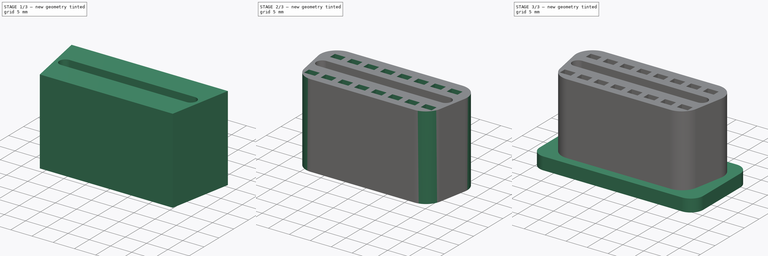
[diagram: build sequence overview — one tinted view per stage of 3, left to right]
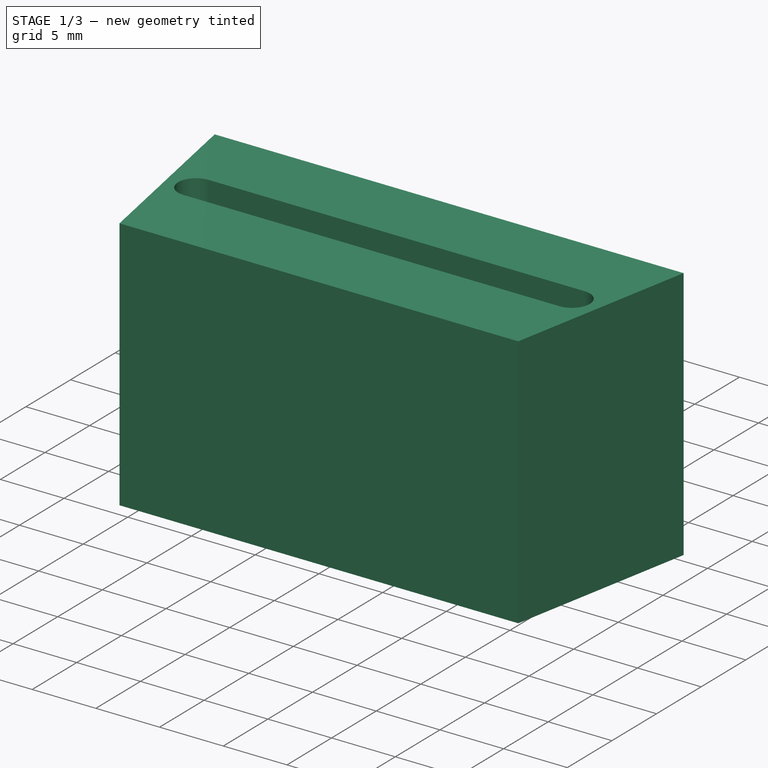
[diagram: stage 1 of 3 — iso view after this stage's code; geometry added in this stage tinted green]
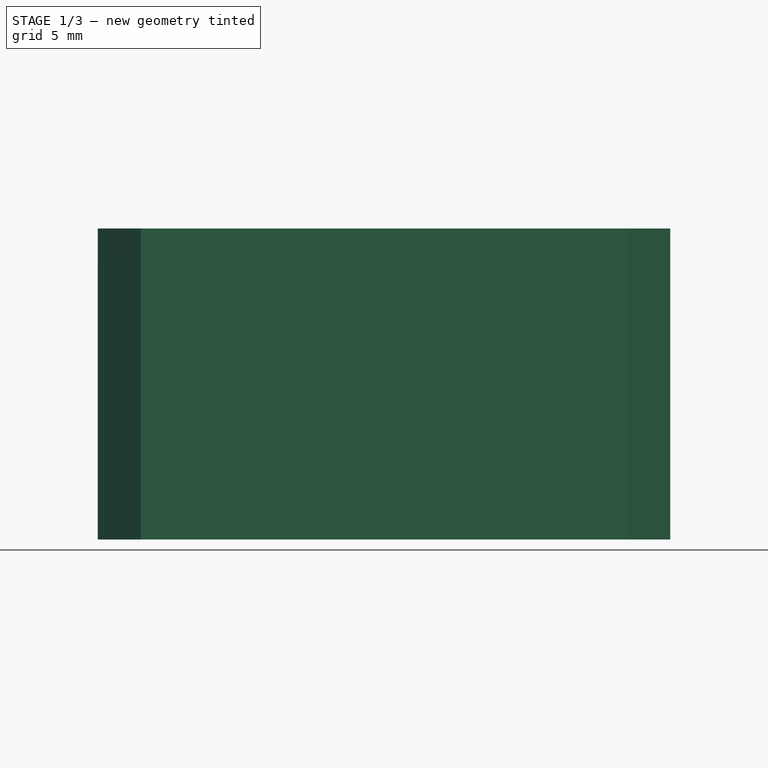
[diagram: stage 1 of 3 — front view after this stage's code; geometry added in this stage tinted green]
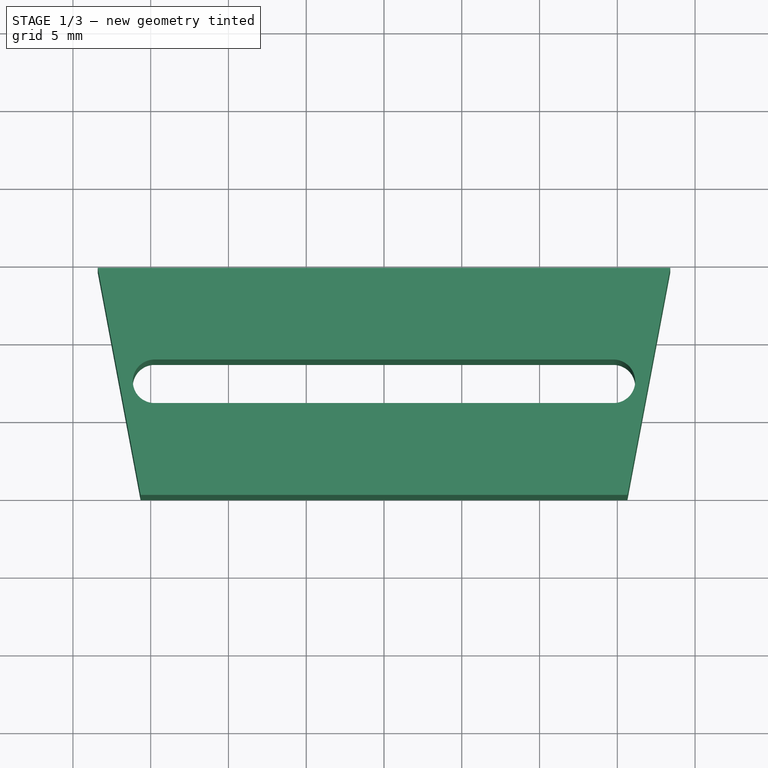
[diagram: stage 1 of 3 — top view after this stage's code; geometry added in this stage tinted green]
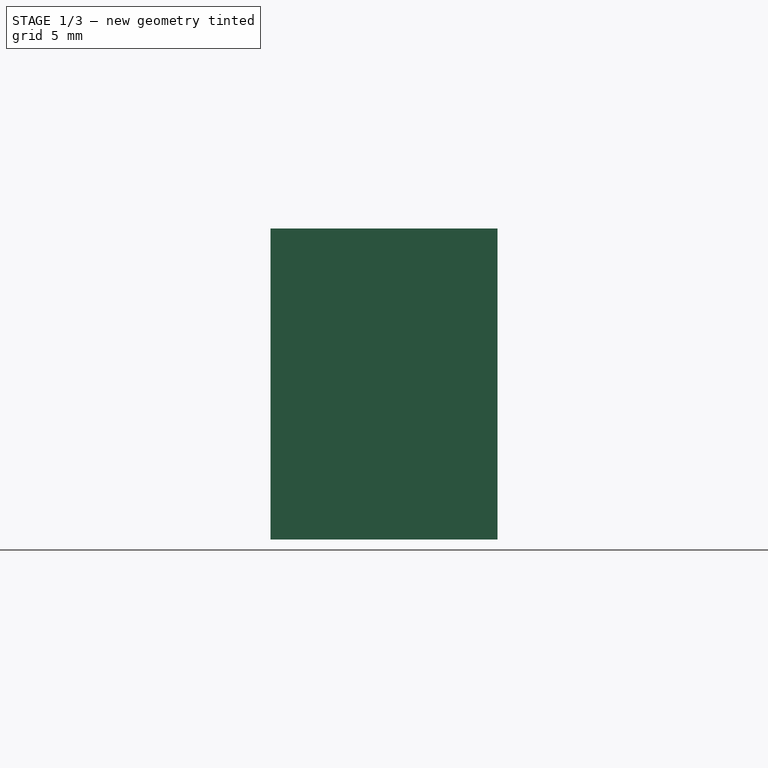
[diagram: stage 1 of 3 — right view after this stage's code; geometry added in this stage tinted green]
FCSTD DOCUMENT  (FreeCAD 0.20R29410 (Git))
Label: obd_zenski
License: All rights reserved
LicenseURL: http://en.wikipedia.org/wiki/All_rights_reserved
objects: Sketcher::SketchObject×4, PartDesign::Pad×2, PartDesign::Pocket×2, PartDesign::Fillet×2, PartDesign::Body×1
note: 17 computed .brp shape members not serialized (recipe doc carries the construction recipe); baked Part::Feature solids carry a one-line shape summary decoded from their .brp

FEATURE [Sketcher::SketchObject] Sketch
  FullyConstrained = true
  MapMode = 5
  Support = -> [XY_Plane]
  sketch-geometry (7):
    g0: LineSegment StartX=-18.4 StartY=14.6 StartZ=0 EndX=18.4 EndY=14.6 EndZ=0
    g1: LineSegment StartX=18.4 StartY=14.6 StartZ=0 EndX=15.65 EndY=0 EndZ=0
    g2: LineSegment StartX=15.65 StartY=0 StartZ=0 EndX=-15.65 EndY=0 EndZ=0
    g3: LineSegment StartX=-15.65 StartY=0 StartZ=0 EndX=-18.4 EndY=14.6 EndZ=0
    g4: GeomPoint X=0 Y=14.6 Z=0
    g5: GeomPoint X=0 Y=0 Z=0
    g6: LineSegment StartX=0 StartY=14.6 StartZ=0 EndX=0 EndY=0 EndZ=0
  constraints (15):
    c: Horizontal(g0)
    c: Coincident(g0,g1)
    c: Coincident(g1,g2)
    c: Horizontal(g2)
    c: Coincident(g2,g3)
    c: Coincident(g3,g0)
    c: DistanceY(g1,g0) = 14.6
    c: DistanceX(g0,g0) = 36.8
    c: DistanceX(g2,g2) = 31.3
    c: Symmetric(g2,g1,g5)
    c: Symmetric(g0,g0,g4)
    c: Coincident(g6,g4)
    c: Coincident(g6,g5)
    c: Vertical(g6)
    c: Coincident(g5,g-1)
FEATURE [PartDesign::Pad] Pad
  Direction = (0,0,1)
  Length = 20
  Length2 = 10
  Profile = -> Sketch
  ReferenceAxis = -> Sketch [N_Axis]
  Type = 0
FEATURE [Sketcher::SketchObject] Sketch001
  FullyConstrained = true
  MapMode = 5
  Placement = pos=(0,0,0) rot=(1,0,0;3.14159rad)
  Support = -> [Pad]
  sketch-geometry (4):
    g0: ArcOfCircle CenterX=-14.75 CenterY=-7.3 CenterZ=0 NormalX=0 NormalY=0 NormalZ=1 AngleXU=0 Radius=1.4 StartAngle=1.5708 EndAngle=4.71239
    g1: ArcOfCircle CenterX=14.75 CenterY=-7.3 CenterZ=0 NormalX=0 NormalY=0 NormalZ=1 AngleXU=0 Radius=1.4 StartAngle=4.71239 EndAngle=7.85398
    g2: LineSegment StartX=-14.75 StartY=-8.7 StartZ=0 EndX=14.75 EndY=-8.7 EndZ=0
    g3: LineSegment StartX=14.75 StartY=-5.9 StartZ=0 EndX=-14.75 EndY=-5.9 EndZ=0
  constraints (9):
    c: Tangent(g0,g2) = -1.5708
    c: Tangent(g2,g1) = -1.5708
    c: Tangent(g1,g3) = -1.5708
    c: Tangent(g3,g0) = -1.5708
    c: Equal(g0,g1)
    c: Diameter(g0) = 2.8
    c: DistanceX(g0,g1) = 29.5
    c: Symmetric(g0,g1,g-2)
    c: DistanceY(g1,g-1) = 7.3
FEATURE [PartDesign::Pocket] Pocket
  BaseFeature = -> Pad
  Direction = (0,0,1)
  Length = 5
  Length2 = 5
  Profile = -> Sketch001
  ReferenceAxis = -> Sketch001 [N_Axis]
  Type = 1
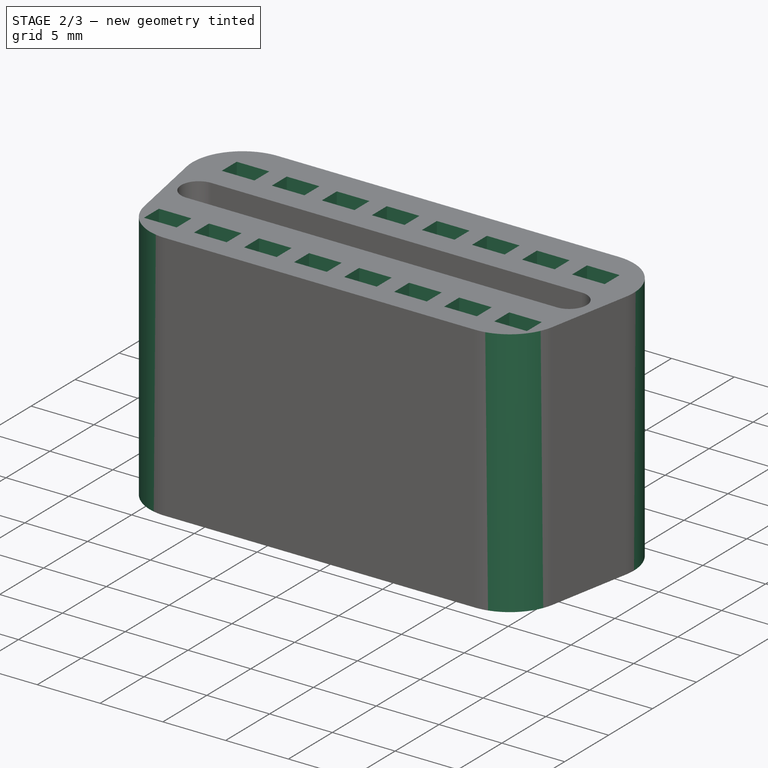
[diagram: stage 2 of 3 — iso view after this stage's code; geometry added in this stage tinted green]
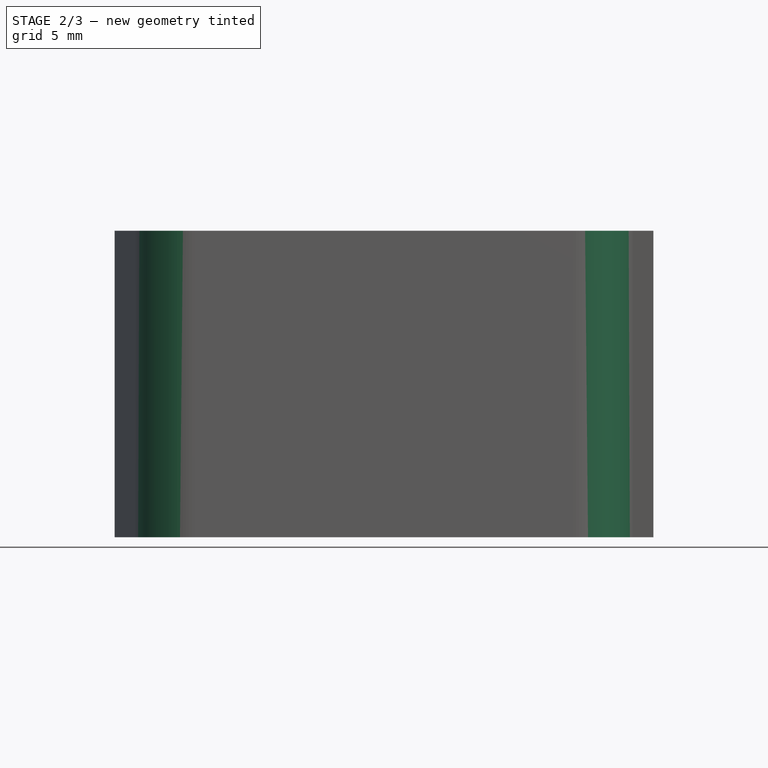
[diagram: stage 2 of 3 — front view after this stage's code; geometry added in this stage tinted green]
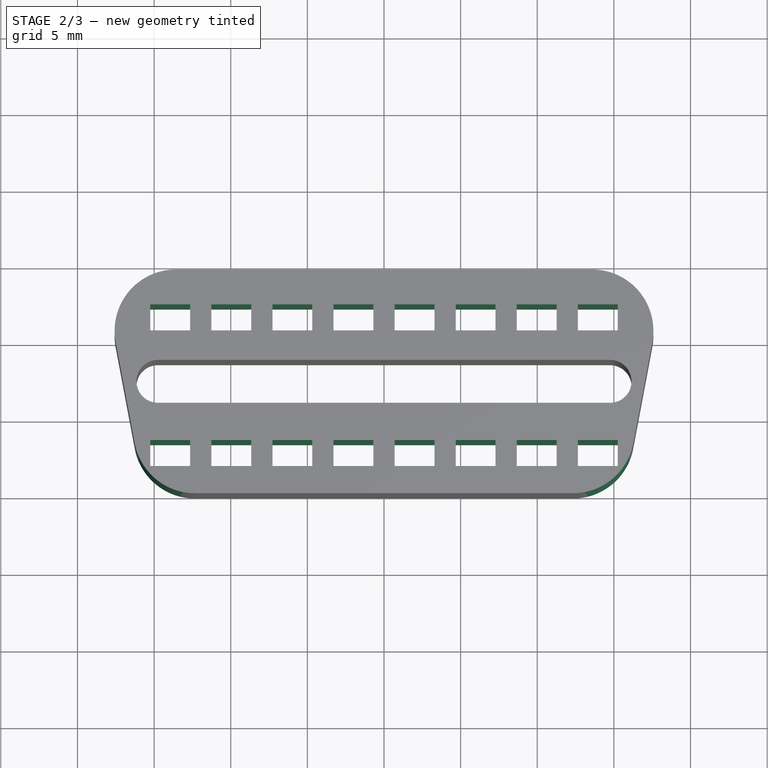
[diagram: stage 2 of 3 — top view after this stage's code; geometry added in this stage tinted green]
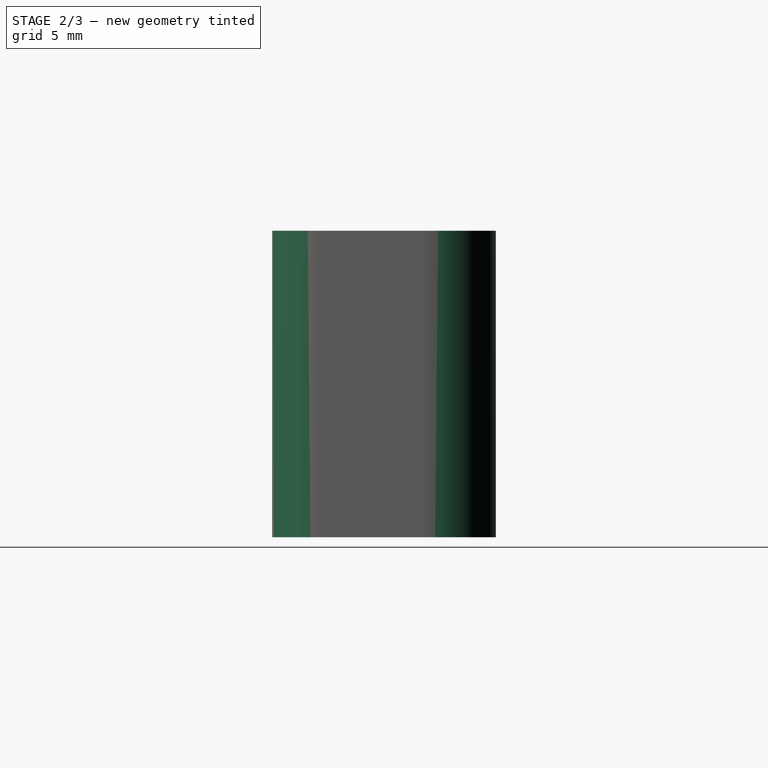
[diagram: stage 2 of 3 — right view after this stage's code; geometry added in this stage tinted green]
FEATURE [Sketcher::SketchObject] Sketch002
  ExternalGeometry = -> [Pocket]
  FullyConstrained = true
  MapMode = 5
  Placement = pos=(0,0,0) rot=(1,0,0;3.14159rad)
  Support = -> [Pocket]
  sketch-geometry (78):
    g0: LineSegment StartX=-15.25 StartY=-1.775 StartZ=0 EndX=-12.65 EndY=-1.775 EndZ=0
    g1: LineSegment StartX=-12.65 StartY=-1.775 StartZ=0 EndX=-12.65 EndY=-3.475 EndZ=0
    g2: LineSegment StartX=-12.65 StartY=-3.475 StartZ=0 EndX=-15.25 EndY=-3.475 EndZ=0
    g3: LineSegment StartX=-15.25 StartY=-3.475 StartZ=0 EndX=-15.25 EndY=-1.775 EndZ=0
    g4: LineSegment StartX=-11.2643 StartY=-1.775 StartZ=0 EndX=-8.66429 EndY=-1.775 EndZ=0
    g5: LineSegment StartX=-8.66429 StartY=-1.775 StartZ=0 EndX=-8.66429 EndY=-3.475 EndZ=0
    g6: LineSegment StartX=-8.66429 StartY=-3.475 StartZ=0 EndX=-11.2643 EndY=-3.475 EndZ=0
    g7: LineSegment StartX=-11.2643 StartY=-3.475 StartZ=0 EndX=-11.2643 EndY=-1.775 EndZ=0
    g8: LineSegment StartX=-7.27857 StartY=-1.775 StartZ=0 EndX=-4.67857 EndY=-1.775 EndZ=0
    g9: LineSegment StartX=-4.67857 StartY=-1.775 StartZ=0 EndX=-4.67857 EndY=-3.475 EndZ=0
    g10: LineSegment StartX=-4.67857 StartY=-3.475 StartZ=0 EndX=-7.27857 EndY=-3.475 EndZ=0
    g11: LineSegment StartX=-7.27857 StartY=-3.475 StartZ=0 EndX=-7.27857 EndY=-1.775 EndZ=0
    g12: LineSegment StartX=-3.29286 StartY=-1.775 StartZ=0 EndX=-0.692857 EndY=-1.775 EndZ=0
    g13: LineSegment StartX=-0.692857 StartY=-1.775 StartZ=0 EndX=-0.692857 EndY=-3.475 EndZ=0
    g14: LineSegment StartX=-0.692857 StartY=-3.475 StartZ=0 EndX=-3.29286 EndY=-3.475 EndZ=0
    g15: LineSegment StartX=-3.29286 StartY=-3.475 StartZ=0 EndX=-3.29286 EndY=-1.775 EndZ=0
    g16: LineSegment StartX=0.692857 StartY=-1.775 StartZ=0 EndX=3.29286 EndY=-1.775 EndZ=0
    g17: LineSegment StartX=3.29286 StartY=-1.775 StartZ=0 EndX=3.29286 EndY=-3.475 EndZ=0
    g18: LineSegment StartX=3.29286 StartY=-3.475 StartZ=0 EndX=0.692857 EndY=-3.475 EndZ=0
    g19: LineSegment StartX=0.692857 StartY=-3.475 StartZ=0 EndX=0.692857 EndY=-1.775 EndZ=0
    g20: LineSegment StartX=4.67857 StartY=-1.775 StartZ=0 EndX=7.27857 EndY=-1.775 EndZ=0
    g21: LineSegment StartX=7.27857 StartY=-1.775 StartZ=0 EndX=7.27857 EndY=-3.475 EndZ=0
    g22: LineSegment StartX=7.27857 StartY=-3.475 StartZ=0 EndX=4.67857 EndY=-3.475 EndZ=0
    g23: LineSegment StartX=4.67857 StartY=-3.475 StartZ=0 EndX=4.67857 EndY=-1.775 EndZ=0
    g24: LineSegment StartX=11.2643 StartY=-1.775 StartZ=0 EndX=11.2643 EndY=-3.475 EndZ=0
    g25: LineSegment StartX=11.2643 StartY=-3.475 StartZ=0 EndX=8.66429 EndY=-3.475 EndZ=0
    g26: LineSegment StartX=8.66429 StartY=-3.475 StartZ=0 EndX=8.66429 EndY=-1.775 EndZ=0
    g27: LineSegment StartX=15.25 StartY=-1.775 StartZ=0 EndX=15.25 EndY=-3.475 EndZ=0
    g28: LineSegment StartX=15.25 StartY=-3.475 StartZ=0 EndX=12.65 EndY=-3.475 EndZ=0
    g29: LineSegment StartX=12.65 StartY=-3.475 StartZ=0 EndX=12.65 EndY=-1.775 EndZ=0
    g30: LineSegment StartX=-15.25 StartY=-10.625 StartZ=0 EndX=-12.65 EndY=-10.625 EndZ=0
    g31: LineSegment StartX=-12.65 StartY=-10.625 StartZ=0 EndX=-12.65 EndY=-12.325 EndZ=0
    g32: LineSegment StartX=-12.65 StartY=-12.325 StartZ=0 EndX=-15.25 EndY=-12.325 EndZ=0
    g33: LineSegment StartX=-15.25 StartY=-12.325 StartZ=0 EndX=-15.25 EndY=-10.625 EndZ=0
    g34: LineSegment StartX=-11.2643 StartY=-10.625 StartZ=0 EndX=-8.66429 EndY=-10.625 EndZ=0
    g35: LineSegment StartX=-8.66429 StartY=-10.625 StartZ=0 EndX=-8.66429 EndY=-12.325 EndZ=0
    g36: LineSegment StartX=-8.66429 StartY=-12.325 StartZ=0 EndX=-11.2643 EndY=-12.325 EndZ=0
    g37: LineSegment StartX=-11.2643 StartY=-12.325 StartZ=0 EndX=-11.2643 EndY=-10.625 EndZ=0
    g38: LineSegment StartX=-7.27857 StartY=-10.625 StartZ=0 EndX=-4.67857 EndY=-10.625 EndZ=0
    g39: LineSegment StartX=-4.67857 StartY=-10.625 StartZ=0 EndX=-4.67857 EndY=-12.325 EndZ=0
    g40: LineSegment StartX=-4.67857 StartY=-12.325 StartZ=0 EndX=-7.27857 EndY=-12.325 EndZ=0
    g41: LineSegment StartX=-7.27857 StartY=-12.325 StartZ=0 EndX=-7.27857 EndY=-10.625 EndZ=0
    g42: LineSegment StartX=-3.29286 StartY=-10.625 StartZ=0 EndX=-0.692857 EndY=-10.625 EndZ=0
    g43: LineSegment StartX=-0.692857 StartY=-10.625 StartZ=0 EndX=-0.692857 EndY=-12.325 EndZ=0
    g44: LineSegment StartX=-0.692857 StartY=-12.325 StartZ=0 EndX=-3.29286 EndY=-12.325 EndZ=0
    g45: LineSegment StartX=-3.29286 StartY=-12.325 StartZ=0 EndX=-3.29286 EndY=-10.625 EndZ=0
    g46: LineSegment StartX=0.692857 StartY=-10.625 StartZ=0 EndX=3.29286 EndY=-10.625 EndZ=0
    g47: LineSegment StartX=3.29286 StartY=-10.625 StartZ=0 EndX=3.29286 EndY=-12.325 EndZ=0
    g48: LineSegment StartX=3.29286 StartY=-12.325 StartZ=0 EndX=0.692857 EndY=-12.325 EndZ=0
    g49: LineSegment StartX=0.692857 StartY=-12.325 StartZ=0 EndX=0.692857 EndY=-10.625 EndZ=0
    g50: LineSegment StartX=4.67857 StartY=-10.625 StartZ=0 EndX=7.27857 EndY=-10.625 EndZ=0
    g51: LineSegment StartX=7.27857 StartY=-10.625 StartZ=0 EndX=7.27857 EndY=-12.325 EndZ=0
    g52: LineSegment StartX=7.27857 StartY=-12.325 StartZ=0 EndX=4.67857 EndY=-12.325 EndZ=0
    g53: LineSegment StartX=4.67857 StartY=-12.325 StartZ=0 EndX=4.67857 EndY=-10.625 EndZ=0
    g54: LineSegment StartX=8.66429 StartY=-10.625 StartZ=0 EndX=11.2643 EndY=-10.625 EndZ=0
    g55: LineSegment StartX=11.2643 StartY=-10.625 StartZ=0 EndX=11.2643 EndY=-12.325 EndZ=0
    g56: LineSegment StartX=11.2643 StartY=-12.325 StartZ=0 EndX=8.66429 EndY=-12.325 EndZ=0
    g57: LineSegment StartX=8.66429 StartY=-12.325 StartZ=0 EndX=8.66429 EndY=-10.625 EndZ=0
    g58: LineSegment StartX=12.65 StartY=-10.625 StartZ=0 EndX=15.25 EndY=-10.625 EndZ=0
    g59: LineSegment StartX=15.25 StartY=-10.625 StartZ=0 EndX=15.25 EndY=-12.325 EndZ=0
    g60: LineSegment StartX=15.25 StartY=-12.325 StartZ=0 EndX=12.65 EndY=-12.325 EndZ=0
    g61: LineSegment StartX=12.65 StartY=-12.325 StartZ=0 EndX=12.65 EndY=-10.625 EndZ=0
    g62: LineSegment StartX=-12.65 StartY=-1.775 StartZ=0 EndX=-11.2643 EndY=-1.775 EndZ=0
    g63: LineSegment StartX=-8.66429 StartY=-1.775 StartZ=0 EndX=-7.27857 EndY=-1.775 EndZ=0
    g64: LineSegment StartX=-4.67857 StartY=-1.775 StartZ=0 EndX=-3.29286 EndY=-1.775 EndZ=0
    g65: LineSegment StartX=-0.692857 StartY=-1.775 StartZ=0 EndX=0.692857 EndY=-1.775 EndZ=0
    g66: LineSegment StartX=3.29286 StartY=-1.775 StartZ=0 EndX=4.67857 EndY=-1.775 EndZ=0
    g67: LineSegment StartX=7.27857 StartY=-1.775 StartZ=0 EndX=8.66429 EndY=-1.775 EndZ=0
    g68: LineSegment StartX=12.65 StartY=-1.775 StartZ=0 EndX=15.25 EndY=-1.775 EndZ=0
    g69: LineSegment StartX=8.66429 StartY=-1.775 StartZ=0 EndX=11.2643 EndY=-1.775 EndZ=0
    g70: LineSegment StartX=11.2643 StartY=-1.775 StartZ=0 EndX=12.65 EndY=-1.775 EndZ=0
    g71: LineSegment StartX=-12.65 StartY=-10.625 StartZ=0 EndX=-11.2643 EndY=-10.625 EndZ=0
    g72: LineSegment StartX=-8.66429 StartY=-10.625 StartZ=0 EndX=-7.27857 EndY=-10.625 EndZ=0
    g73: LineSegment StartX=-4.67857 StartY=-10.625 StartZ=0 EndX=-3.29286 EndY=-10.625 EndZ=0
    g74: LineSegment StartX=-0.692857 StartY=-10.625 StartZ=0 EndX=0.692857 EndY=-10.625 EndZ=0
    g75: LineSegment StartX=3.29286 StartY=-10.625 StartZ=0 EndX=4.67857 EndY=-10.625 EndZ=0
    g76: LineSegment StartX=7.27857 StartY=-10.625 StartZ=0 EndX=8.66429 EndY=-10.625 EndZ=0
    g77: LineSegment StartX=11.2643 StartY=-10.625 StartZ=0 EndX=12.65 EndY=-10.625 EndZ=0
  constraints (221):
    c: Coincident(g0,g1)
    c: Coincident(g1,g2)
    c: Coincident(g2,g3)
    c: Coincident(g3,g0)
    c: Horizontal(g0)
    c: Horizontal(g2)
    c: Vertical(g1)
    c: Vertical(g3)
    c: Coincident(g4,g5)
    c: Coincident(g5,g6)
    c: Coincident(g6,g7)
    c: Coincident(g7,g4)
    c: Horizontal(g4)
    c: Horizontal(g6)
    c: Vertical(g5)
    c: Vertical(g7)
    c: Coincident(g8,g9)
    c: Coincident(g9,g10)
    c: Coincident(g10,g11)
    c: Coincident(g11,g8)
    c: Horizontal(g8)
    c: Horizontal(g10)
    c: Vertical(g9)
    c: Vertical(g11)
    c: Coincident(g12,g13)
    c: Coincident(g13,g14)
    c: Coincident(g14,g15)
    c: Coincident(g15,g12)
    c: Horizontal(g12)
    c: Horizontal(g14)
    c: Vertical(g13)
    c: Vertical(g15)
    c: Coincident(g16,g17)
    c: Coincident(g17,g18)
    c: Coincident(g18,g19)
    c: Coincident(g19,g16)
    c: Horizontal(g16)
    c: Horizontal(g18)
    c: Vertical(g17)
    c: Vertical(g19)
    c: Coincident(g20,g21)
    c: Coincident(g21,g22)
    c: Coincident(g22,g23)
    c: Coincident(g23,g20)
    c: Horizontal(g20)
    c: Horizontal(g22)
    c: Vertical(g21)
    c: Vertical(g23)
    c: Coincident(g24,g25)
    c: Coincident(g25,g26)
    c: Horizontal(g25)
    c: Vertical(g24)
    c: Vertical(g26)
    c: Coincident(g27,g28)
    c: Coincident(g28,g29)
    c: Horizontal(g28)
    c: Vertical(g27)
    c: Vertical(g29)
    c: Coincident(g30,g31)
    c: Coincident(g31,g32)
    c: Coincident(g32,g33)
    c: Coincident(g33,g30)
    c: Horizontal(g30)
    c: Horizontal(g32)
    c: Vertical(g31)
    c: Vertical(g33)
    c: Coincident(g34,g35)
    c: Coincident(g35,g36)
    c: Coincident(g36,g37)
    c: Coincident(g37,g34)
    c: Horizontal(g34)
    c: Horizontal(g36)
    c: Vertical(g35)
    c: Vertical(g37)
    c: Coincident(g38,g39)
    c: Coincident(g39,g40)
    c: Coincident(g40,g41)
    c: Coincident(g41,g38)
    c: Horizontal(g38)
    c: Horizontal(g40)
    c: Vertical(g39)
    c: Vertical(g41)
    c: Coincident(g42,g43)
    c: Coincident(g43,g44)
    c: Coincident(g44,g45)
    c: Coincident(g45,g42)
    c: Horizontal(g42)
    c: Horizontal(g44)
    c: Vertical(g43)
    c: Vertical(g45)
    c: Coincident(g46,g47)
    c: Coincident(g47,g48)
    c: Coincident(g48,g49)
    c: Coincident(g49,g46)
    c: Horizontal(g46)
    c: Horizontal(g48)
    c: Vertical(g47)
    c: Vertical(g49)
    c: Coincident(g50,g51)
    c: Coincident(g51,g52)
    c: Coincident(g52,g53)
    c: Coincident(g53,g50)
    c: Horizontal(g50)
    c: Horizontal(g52)
    c: Vertical(g51)
    c: Vertical(g53)
    c: Coincident(g54,g55)
    c: Coincident(g55,g56)
    c: Coincident(g56,g57)
    c: Coincident(g57,g54)
    c: Horizontal(g54)
    c: Horizontal(g56)
    c: Vertical(g55)
    c: Vertical(g57)
    c: Coincident(g58,g59)
    c: Coincident(g59,g60)
    c: Coincident(g60,g61)
    c: Coincident(g61,g58)
    c: Horizontal(g58)
    c: Horizontal(g60)
    c: Vertical(g59)
    c: Vertical(g61)
    c: DistanceX(g2,g2) = 2.6
    c: DistanceY(g1,g1) = 1.7
    c: Equal(g1,g5)
    c: Equal(g5,g9)
    c: Equal(g9,g13)
    c: Equal(g13,g17)
    c: Equal(g17,g21)
    c: Equal(g21,g24)
    c: Equal(g24,g27)
    c: Equal(g27,g59)
    c: Equal(g59,g55)
    c: Equal(g55,g51)
    c: Equal(g51,g47)
    c: Equal(g47,g43)
    c: Equal(g43,g39)
    c: Equal(g39,g35)
    c: Equal(g35,g31)
    c: Equal(g2,g6)
    c: Equal(g6,g10)
    c: Equal(g10,g14)
    c: Equal(g14,g18)
    c: Equal(g18,g22)
    c: Equal(g22,g25)
    c: Equal(g25,g28)
    c: Equal(g28,g60)
    c: Equal(g60,g56)
    c: Equal(g56,g52)
    c: Equal(g52,g48)
    c: Equal(g48,g44)
    c: Equal(g44,g40)
    c: Equal(g40,g36)
    c: Equal(g36,g32)
    c: DistanceX(g1,g6) = 1.38571
    c: Coincident(g62,g0)
    c: Coincident(g62,g4)
    c: Horizontal(g62)
    c: Coincident(g63,g4)
    c: Coincident(g63,g8)
    c: Coincident(g64,g8)
    c: Coincident(g64,g12)
    c: Horizontal(g64)
    c: Coincident(g65,g12)
    c: Coincident(g65,g16)
    c: Coincident(g66,g16)
    c: Coincident(g66,g20)
    c: Horizontal(g66)
    c: Coincident(g67,g20)
    c: Horizontal(g67)
    c: Horizontal(g63)
    c: Equal(g62,g63)
    c: Equal(g63,g64)
    c: Equal(g64,g65)
    c: Equal(g65,g66)
    c: Equal(g66,g67)
    c: Horizontal(g65)
    c: Coincident(g68,g29)
    c: Coincident(g68,g27)
    c: Horizontal(g68)
    c: Coincident(g69,g26)
    c: Coincident(g69,g24)
    c: Horizontal(g69)
    c: Coincident(g70,g24)
    c: Coincident(g70,g29)
    c: Horizontal(g70)
    c: Equal(g67,g70)
    c: Coincident(g26,g67)
    c: Coincident(g71,g30)
    c: Coincident(g71,g34)
    c: Horizontal(g71)
    c: Coincident(g72,g34)
    c: Coincident(g72,g38)
    c: Horizontal(g72)
    c: Coincident(g73,g38)
    c: Coincident(g73,g42)
    c: Horizontal(g73)
    c: Coincident(g74,g42)
    c: Coincident(g74,g46)
    c: Coincident(g75,g46)
    c: Coincident(g75,g50)
    c: Horizontal(g75)
    c: Coincident(g76,g50)
    c: Coincident(g76,g54)
    c: Coincident(g77,g54)
    c: Coincident(g77,g58)
    c: Horizontal(g77)
    c: Horizontal(g76)
    c: Equal(g71,g72)
    c: Equal(g72,g73)
    c: Equal(g73,g74)
    c: Equal(g74,g75)
    c: Equal(g75,g76)
    c: Equal(g76,g77)
    c: Equal(g77,g62)
    c: DistanceX(g2,g30) = 0
    c: DistanceY(g30,g2) = 7.15
    c: DistanceY(g-3,g1) = 2.425
    c: DistanceY(g30,g-4) = 1.925
    c: Symmetric(g42,g46,g-2)
    c: DistanceX(g0,g27) = 30.5
FEATURE [PartDesign::Pocket] Pocket001
  BaseFeature = -> Pocket
  Direction = (0,0,1)
  Length = 5
  Length2 = 5
  Profile = -> Sketch002
  ReferenceAxis = -> Sketch002 [N_Axis]
  Type = 1
FEATURE [PartDesign::Fillet] Fillet
  Base = -> Pocket001 [Edge2,Edge8,Edge5,Edge1]
  BaseFeature = -> Pocket001
  Radius = 4
  SupportTransform = false
  UseAllEdges = false
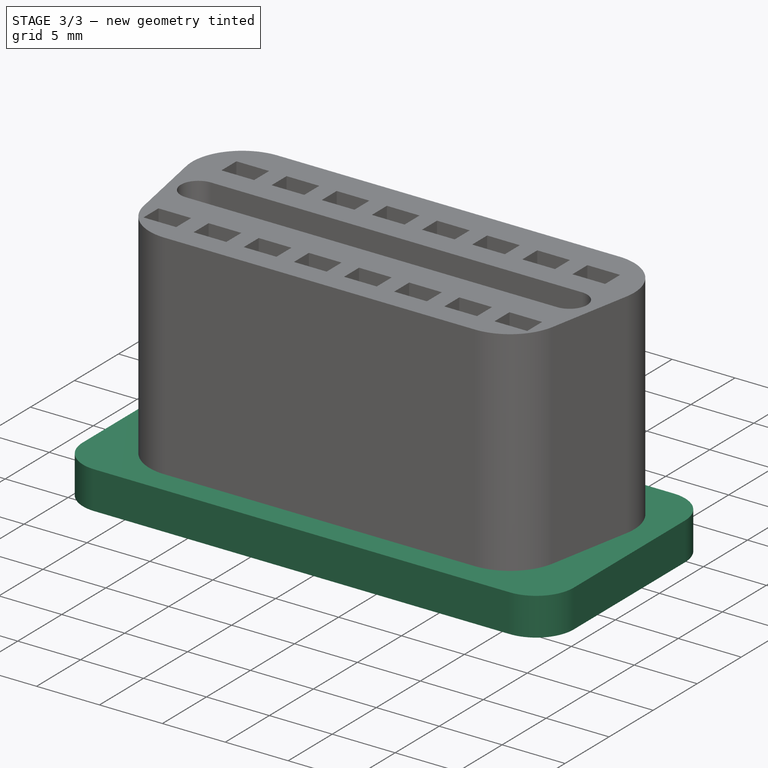
[diagram: stage 3 of 3 — iso view after this stage's code; geometry added in this stage tinted green]
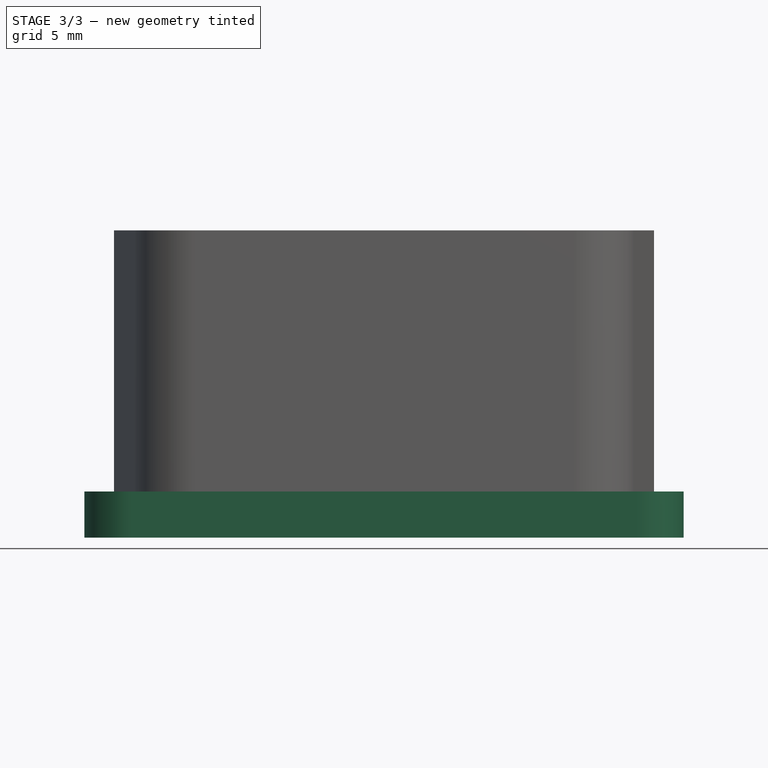
[diagram: stage 3 of 3 — front view after this stage's code; geometry added in this stage tinted green]
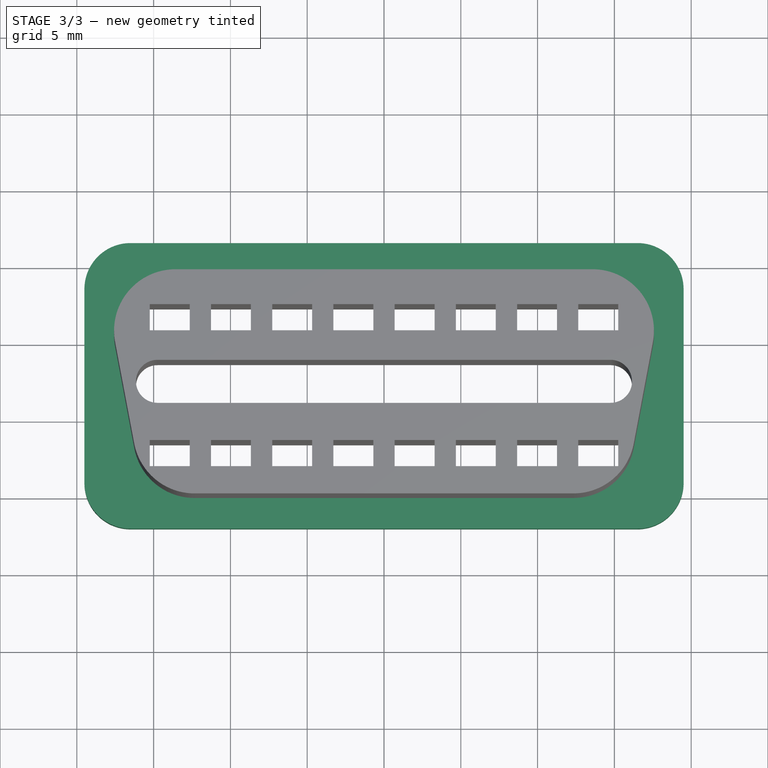
[diagram: stage 3 of 3 — top view after this stage's code; geometry added in this stage tinted green]
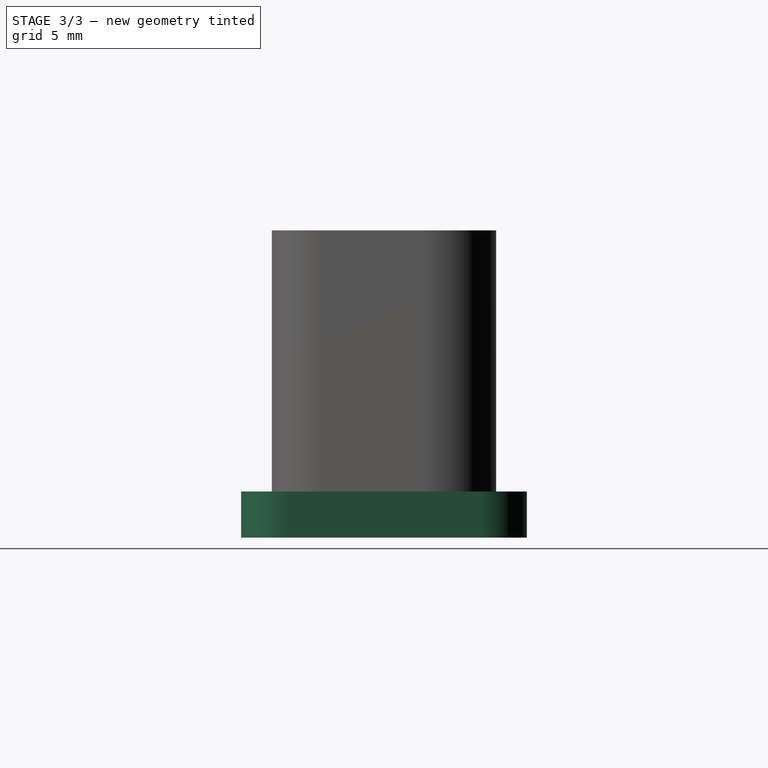
[diagram: stage 3 of 3 — right view after this stage's code; geometry added in this stage tinted green]
FEATURE [Sketcher::SketchObject] Sketch003
  ExternalGeometry = -> [Fillet]
  FullyConstrained = false
  MapMode = 5
  Placement = pos=(0,0,0) rot=(1,0,0;3.14159rad)
  Support = -> [Fillet]
  sketch-geometry (12):
    g0: LineSegment StartX=-19.5071 StartY=2 StartZ=0 EndX=19.5071 EndY=2 EndZ=0
    g1: LineSegment StartX=19.5071 StartY=2 StartZ=0 EndX=19.5071 EndY=-16.6 EndZ=0
    g2: LineSegment StartX=19.5071 StartY=-16.6 StartZ=0 EndX=-19.5071 EndY=-16.6 EndZ=0
    g3: LineSegment StartX=-19.5071 StartY=-16.6 StartZ=0 EndX=-19.5071 EndY=2 EndZ=0
    g4: LineSegment StartX=-12.6777 StartY=-0.35518 StartZ=0 EndX=12.5567 EndY=-0.35518 EndZ=0
    g5: ArcOfCircle CenterX=12.5567 CenterY=-3.81605 CenterZ=0 NormalX=0 NormalY=0 NormalZ=1 AngleXU=0 Radius=3.46087 StartAngle=0.0625969 EndAngle=1.5708
    g6: LineSegment StartX=16.0108 StartY=-3.59955 StartZ=0 EndX=16.9889 EndY=-10.4722 EndZ=0
    g7: ArcOfCircle CenterX=13.86 CenterY=-10.9174 CenterZ=0 NormalX=0 NormalY=0 NormalZ=1 AngleXU=0 Radius=3.1604 StartAngle=4.6901 EndAngle=6.42456
    g8: LineSegment StartX=13.7896 StartY=-14.0771 StartZ=0 EndX=-13.4865 EndY=-14.0771 EndZ=0
    g9: ArcOfCircle CenterX=-13.4865 CenterY=-10.5659 CenterZ=0 NormalX=0 NormalY=0 NormalZ=1 AngleXU=0 Radius=3.51118 StartAngle=2.93828 EndAngle=4.71239
    g10: LineSegment StartX=-16.9254 StartY=-9.85691 StartZ=0 EndX=-15.8686 EndY=-3.03084 EndZ=0
    g11: ArcOfCircle CenterX=-12.7459 CenterY=-3.51429 CenterZ=0 NormalX=0 NormalY=0 NormalZ=1 AngleXU=0 Radius=3.15984 StartAngle=1.5492 EndAngle=2.98799
  constraints (21):
    c: Coincident(g0,g1)
    c: Coincident(g1,g2)
    c: Coincident(g2,g3)
    c: Coincident(g3,g0)
    c: Horizontal(g2)
    c: Vertical(g1)
    c: Vertical(g3)
    c: Symmetric(g0,g0,g-2)
    c: DistanceY(g2,g-3) = 2
    c: DistanceX(g2,g-3) = 2
    c: DistanceY(g-1,g0) = 2
    c: Horizontal(g4)
    c: Tangent(g4,g5) = 1.5708
    c: Coincident(g5,g6)
    c: Tangent(g6,g7) = 1.5708
    c: Coincident(g7,g8)
    c: Horizontal(g8)
    c: Tangent(g8,g9) = 1.5708
    c: Coincident(g9,g10)
    c: Tangent(g10,g11) = 1.5708
    c: Coincident(g11,g4)
FEATURE [PartDesign::Pad] Pad001
  BaseFeature = -> Fillet
  Direction = (0,0,-1)
  Length = 3
  Length2 = 10
  Profile = -> Sketch003
  ReferenceAxis = -> Sketch003 [N_Axis]
  Reversed = true
  Type = 0
FEATURE [PartDesign::Fillet] Fillet001
  Base = -> Pad001 [Edge90,Edge94,Edge89,Edge92]
  BaseFeature = -> Pad001
  Radius = 3
  SupportTransform = false
  UseAllEdges = false
FEATURE [PartDesign::Body] Body
  Group = -> [Sketch,Pad,Sketch001,Pocket,Sketch002,Pocket001,Fillet,Sketch003,Pad001,Fillet001]
  Origin = -> Origin
  Tip = -> Fillet001
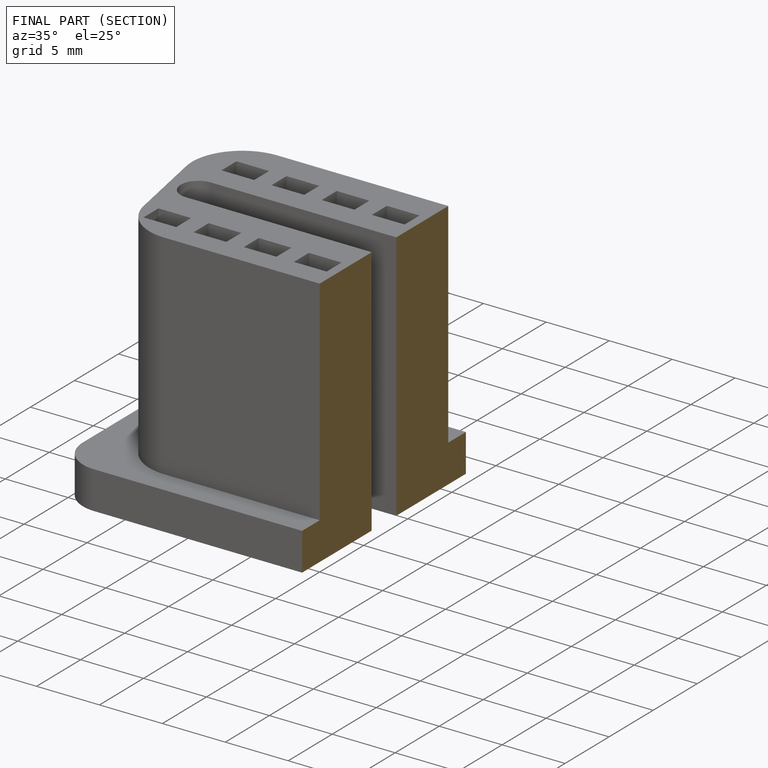
[diagram: finished part — half-section view (interior)]
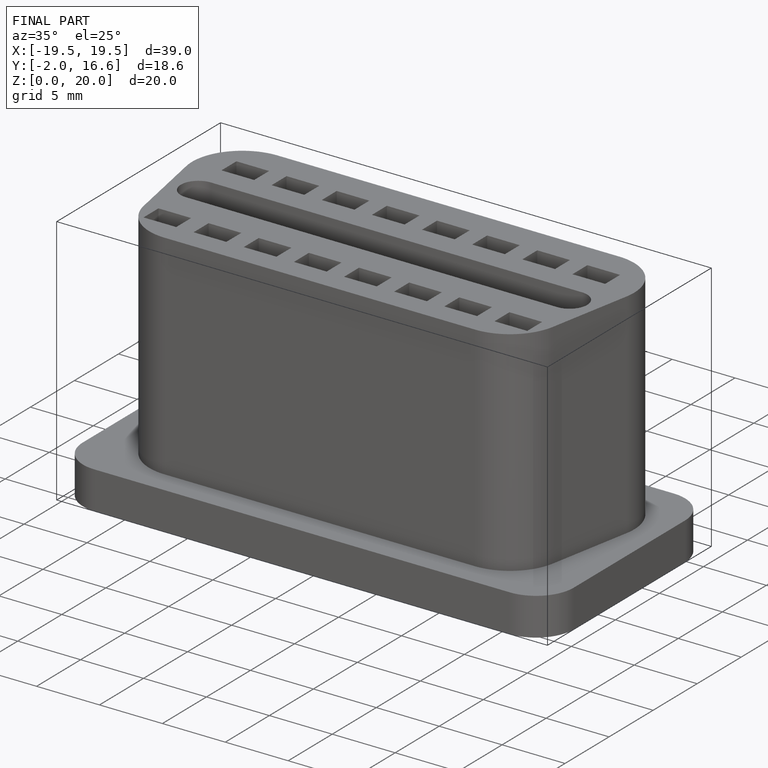
[diagram: finished part — iso view with bounding-box wireframe]
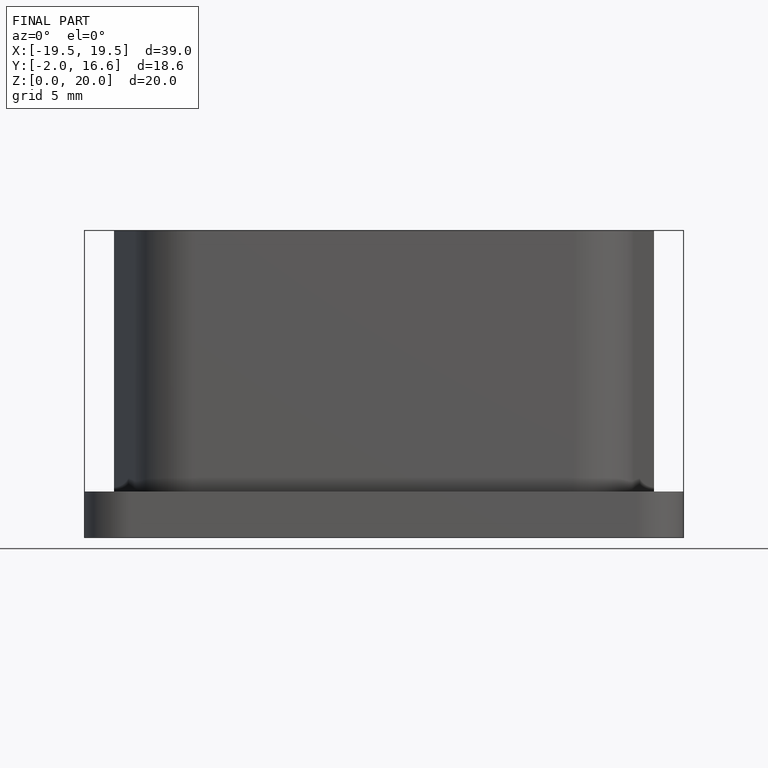
[diagram: finished part — front view with bounding-box wireframe]
